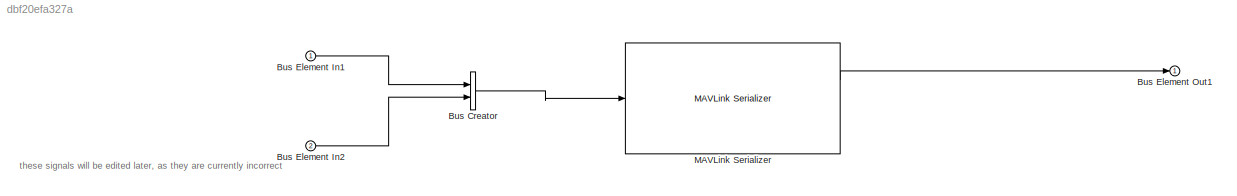
MODEL slx_dbf20efa327a
KIND model
CONFIG AbsTol = auto
CONFIG EnableMultiTasking = off
CONFIG FixedStep = auto
CONFIG MaxStep = auto
CONFIG MinStep = auto
CONFIG RelTol = 1e-3
CONFIG SampleTimeConstraint = Unconstrained
CONFIG SolverName = VariableStepAuto
CONFIG StartTime = 0.0
CONFIG StopTime = 10.0
BLOCK [BusCreator] Bus Creator
  DisplayOption = bar
  InheritFromInputs = on
  Inputs = 2
  Ports = [2, 1]
BLOCK [Inport] Bus Element In1
BLOCK [Inport] Bus Element In2
  Port = 2
BLOCK [Outport] Bus Element Out1
BLOCK [Reference] MAVLink Serializer  REF=uavmavlinklib/MAVLink Serializer
  Ports = [1, 2]
  SourceBlock = uavmavlinklib/MAVLink Serializer
  SourceProductBaseCode = UV
  SourceType = MAVLink Serializer
ANNOTATION (root): these signals will be edited later, as they are currently incorrect
LINE Bus Creator:1 -> MAVLink Serializer:1
LINE Bus Element In1:1 -> Bus Creator:1
LINE Bus Element In2:1 -> Bus Creator:2
LINE MAVLink Serializer:1 -> Bus Element Out1:1
